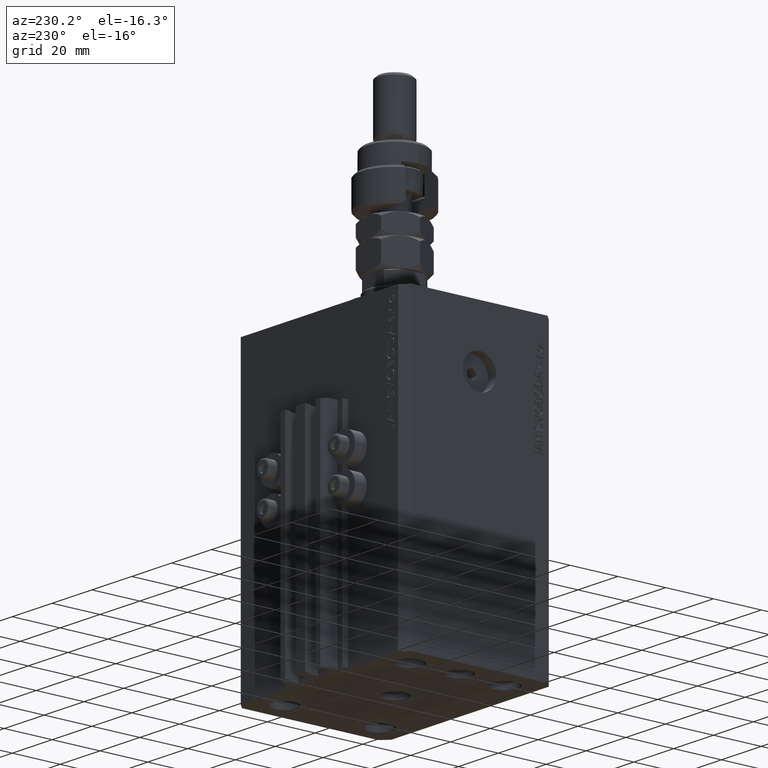
[diagram: clean part render]
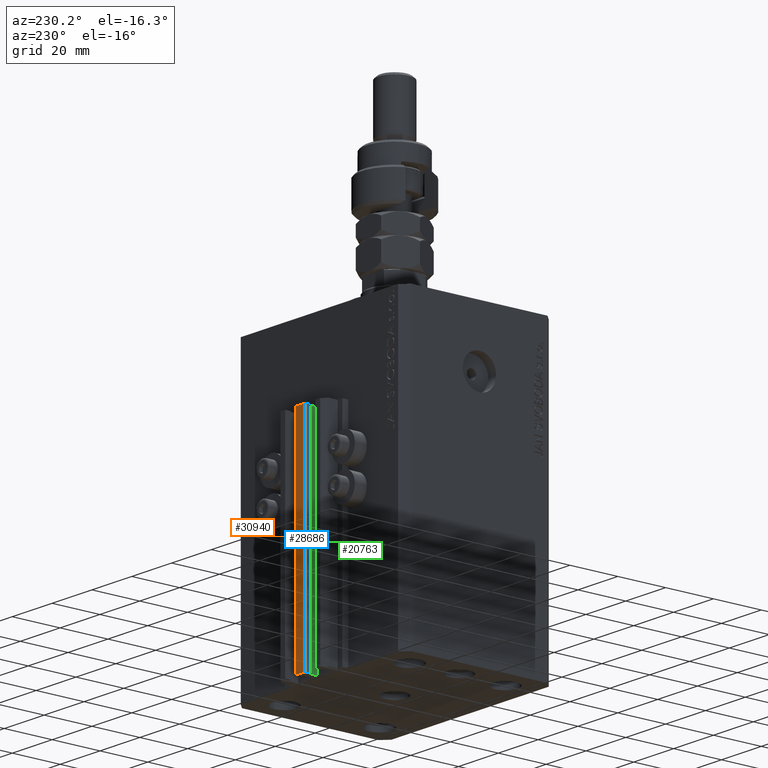
[diagram: same view with three faces highlighted in distinct colors, each labeled with its STEP entity id]
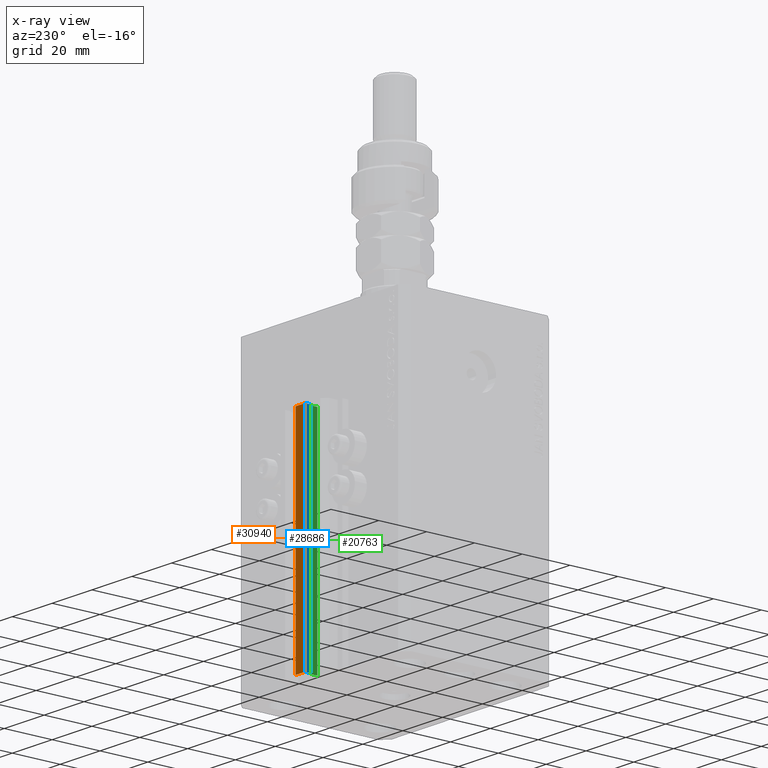
[diagram: x-ray of the same camera — body ghosted, the three highlighted faces saturated]
A machine part, auxiliary view with three faces highlighted in distinct colors.
The next image is the same camera in x-ray (body ghosted, the three faces saturated) — at least one of them is partly hidden behind the body in this view.
Their STEP definitions:

[orange] entity #30940 — the highlighted planar face has unit normal (0, -1, 0).
#2632 = ORIENTED_EDGE ( 'NONE', *, *, #13558, .T. ) ;
#5527 = DIRECTION ( 'NONE',  ( 0.000000000000000000, -1.000000000000000000, 0.000000000000000000 ) ) ;
#7011 = VERTEX_POINT ( 'NONE', #17304 ) ;
#8791 = CARTESIAN_POINT ( 'NONE',  ( -2.350000000000003642, 39.50000000000000711, -123.0000000000000000 ) ) ;
#9266 = EDGE_LOOP ( 'NONE', ( #11785, #40470, #32082, #2632 ) ) ;
#9633 = CARTESIAN_POINT ( 'NONE',  ( 2.349999999999999645, 39.50000000000000711, -123.0000000000000000 ) ) ;
#10582 = CARTESIAN_POINT ( 'NONE',  ( -2.350000000000003642, 39.50000000000000711, -123.0000000000000000 ) ) ;
#11193 = LINE ( 'NONE', #19076, #11349 ) ;
#11349 = VECTOR ( 'NONE', #39099, 1000.000000000000000 ) ;
#11785 = ORIENTED_EDGE ( 'NONE', *, *, #19922, .T. ) ;
#12519 = AXIS2_PLACEMENT_3D ( 'NONE', #10582, #5527, #34425 ) ;
#13093 = VERTEX_POINT ( 'NONE', #33103 ) ;
#13558 = EDGE_CURVE ( 'NONE', #45313, #7011, #11193, .T. ) ;
#17190 = FACE_OUTER_BOUND ( 'NONE', #9266, .T. ) ;
#17304 = CARTESIAN_POINT ( 'NONE',  ( -2.350000000000003642, 39.50000000000000711, -33.00000000000000000 ) ) ;
#19076 = CARTESIAN_POINT ( 'NONE',  ( -2.350000000000003642, 39.50000000000000711, -123.0000000000000000 ) ) ;
#19922 = EDGE_CURVE ( 'NONE', #7011, #35705, #24544, .T. ) ;
#20053 = CARTESIAN_POINT ( 'NONE',  ( 2.349999999999999645, 39.50000000000000711, -33.00000000000000000 ) ) ;
#20980 = DIRECTION ( 'NONE',  ( 1.000000000000000000, 0.000000000000000000, 0.000000000000000000 ) ) ;
#21068 = DIRECTION ( 'NONE',  ( 0.000000000000000000, 0.000000000000000000, 1.000000000000000000 ) ) ;
#22077 = LINE ( 'NONE', #9633, #38693 ) ;
#24544 = LINE ( 'NONE', #43568, #33301 ) ;
#24553 = EDGE_CURVE ( 'NONE', #45313, #13093, #47372, .T. ) ;
#26209 = VECTOR ( 'NONE', #35929, 1000.000000000000000 ) ;
#30940 = ADVANCED_FACE ( 'NONE', ( #17190 ), #45348, .F. ) ;
#32082 = ORIENTED_EDGE ( 'NONE', *, *, #24553, .F. ) ;
#33103 = CARTESIAN_POINT ( 'NONE',  ( 2.349999999999999645, 39.50000000000000711, -123.0000000000000000 ) ) ;
#33301 = VECTOR ( 'NONE', #20980, 1000.000000000000000 ) ;
#34425 = DIRECTION ( 'NONE',  ( 0.000000000000000000, -0.000000000000000000, -1.000000000000000000 ) ) ;
#35705 = VERTEX_POINT ( 'NONE', #20053 ) ;
#35929 = DIRECTION ( 'NONE',  ( 1.000000000000000000, 0.000000000000000000, 0.000000000000000000 ) ) ;
#37951 = EDGE_CURVE ( 'NONE', #13093, #35705, #22077, .T. ) ;
#38693 = VECTOR ( 'NONE', #21068, 1000.000000000000000 ) ;
#39099 = DIRECTION ( 'NONE',  ( 0.000000000000000000, 0.000000000000000000, 1.000000000000000000 ) ) ;
#40470 = ORIENTED_EDGE ( 'NONE', *, *, #37951, .F. ) ;
#41001 = CARTESIAN_POINT ( 'NONE',  ( -2.350000000000003642, 39.50000000000000711, -123.0000000000000000 ) ) ;
#43568 = CARTESIAN_POINT ( 'NONE',  ( -2.350000000000003642, 39.50000000000000711, -33.00000000000000000 ) ) ;
#45313 = VERTEX_POINT ( 'NONE', #41001 ) ;
#45348 = PLANE ( 'NONE',  #12519 ) ;
#47372 = LINE ( 'NONE', #8791, #26209 ) ;

[blue] entity #28686 — the highlighted planar face has unit normal (-1, -0, 0).
#92 = VERTEX_POINT ( 'NONE', #32090 ) ;
#208 = DIRECTION ( 'NONE',  ( 1.807003620809174632E-16, -1.000000000000000000, 0.000000000000000000 ) ) ;
#4009 = LINE ( 'NONE', #26843, #38825 ) ;
#4976 = EDGE_LOOP ( 'NONE', ( #48661, #11967, #22589, #31079 ) ) ;
#7011 = VERTEX_POINT ( 'NONE', #17304 ) ;
#9162 = DIRECTION ( 'NONE',  ( -1.000000000000000000, -1.807003620809174878E-16, 0.000000000000000000 ) ) ;
#9271 = VECTOR ( 'NONE', #23325, 1000.000000000000000 ) ;
#11193 = LINE ( 'NONE', #19076, #11349 ) ;
#11349 = VECTOR ( 'NONE', #39099, 1000.000000000000000 ) ;
#11967 = ORIENTED_EDGE ( 'NONE', *, *, #13558, .F. ) ;
#11982 = LINE ( 'NONE', #39141, #17785 ) ;
#12918 = EDGE_CURVE ( 'NONE', #14061, #92, #11982, .T. ) ;
#13558 = EDGE_CURVE ( 'NONE', #45313, #7011, #11193, .T. ) ;
#14061 = VERTEX_POINT ( 'NONE', #22199 ) ;
#16276 = PLANE ( 'NONE',  #19068 ) ;
#17304 = CARTESIAN_POINT ( 'NONE',  ( -2.350000000000003642, 39.50000000000000711, -33.00000000000000000 ) ) ;
#17785 = VECTOR ( 'NONE', #46522, 1000.000000000000000 ) ;
#19068 = AXIS2_PLACEMENT_3D ( 'NONE', #32009, #9162, #47491 ) ;
#19076 = CARTESIAN_POINT ( 'NONE',  ( -2.350000000000003642, 39.50000000000000711, -123.0000000000000000 ) ) ;
#22199 = CARTESIAN_POINT ( 'NONE',  ( -2.350000000000003197, 37.10000000000000853, -123.0000000000000000 ) ) ;
#22589 = ORIENTED_EDGE ( 'NONE', *, *, #45242, .T. ) ;
#23325 = DIRECTION ( 'NONE',  ( 1.807003620809174632E-16, -1.000000000000000000, 0.000000000000000000 ) ) ;
#26843 = CARTESIAN_POINT ( 'NONE',  ( -2.350000000000003642, 39.50000000000000711, -123.0000000000000000 ) ) ;
#26873 = CARTESIAN_POINT ( 'NONE',  ( -2.350000000000003642, 39.50000000000000711, -33.00000000000000000 ) ) ;
#28686 = ADVANCED_FACE ( 'NONE', ( #40356 ), #16276, .T. ) ;
#30712 = EDGE_CURVE ( 'NONE', #7011, #92, #42845, .T. ) ;
#31079 = ORIENTED_EDGE ( 'NONE', *, *, #12918, .T. ) ;
#32009 = CARTESIAN_POINT ( 'NONE',  ( -2.350000000000003642, 39.50000000000000711, -123.0000000000000000 ) ) ;
#32090 = CARTESIAN_POINT ( 'NONE',  ( -2.350000000000003197, 37.10000000000000853, -33.00000000000000000 ) ) ;
#38825 = VECTOR ( 'NONE', #208, 1000.000000000000000 ) ;
#39099 = DIRECTION ( 'NONE',  ( 0.000000000000000000, 0.000000000000000000, 1.000000000000000000 ) ) ;
#39141 = CARTESIAN_POINT ( 'NONE',  ( -2.350000000000003197, 37.10000000000000853, -123.0000000000000000 ) ) ;
#40356 = FACE_OUTER_BOUND ( 'NONE', #4976, .T. ) ;
#41001 = CARTESIAN_POINT ( 'NONE',  ( -2.350000000000003642, 39.50000000000000711, -123.0000000000000000 ) ) ;
#42845 = LINE ( 'NONE', #26873, #9271 ) ;
#45242 = EDGE_CURVE ( 'NONE', #45313, #14061, #4009, .T. ) ;
#45313 = VERTEX_POINT ( 'NONE', #41001 ) ;
#46522 = DIRECTION ( 'NONE',  ( 0.000000000000000000, 0.000000000000000000, 1.000000000000000000 ) ) ;
#47491 = DIRECTION ( 'NONE',  ( 1.807003620809174878E-16, -1.000000000000000000, 0.000000000000000000 ) ) ;
#48661 = ORIENTED_EDGE ( 'NONE', *, *, #30712, .F. ) ;

[green] entity #20763 — the highlighted planar face has unit normal (-1, 0, 0).
#3175 = CARTESIAN_POINT ( 'NONE',  ( -1.600000000000001421, 36.90000000000000568, -123.0000000000000000 ) ) ;
#3943 = VERTEX_POINT ( 'NONE', #35068 ) ;
#8771 = ORIENTED_EDGE ( 'NONE', *, *, #15827, .T. ) ;
#9293 = VERTEX_POINT ( 'NONE', #42043 ) ;
#10745 = VERTEX_POINT ( 'NONE', #32071 ) ;
#12314 = AXIS2_PLACEMENT_3D ( 'NONE', #34473, #22812, #27110 ) ;
#12489 = VECTOR ( 'NONE', #26427, 1000.000000000000000 ) ;
#13395 = CARTESIAN_POINT ( 'NONE',  ( -1.600000000000000755, 33.70000000000000284, -123.0000000000000000 ) ) ;
#14561 = LINE ( 'NONE', #3175, #20247 ) ;
#14737 = LINE ( 'NONE', #29720, #12489 ) ;
#14904 = LINE ( 'NONE', #34707, #43008 ) ;
#15827 = EDGE_CURVE ( 'NONE', #29003, #9293, #37738, .T. ) ;
#18960 = EDGE_CURVE ( 'NONE', #10745, #9293, #14904, .T. ) ;
#20247 = VECTOR ( 'NONE', #22699, 1000.000000000000000 ) ;
#20763 = ADVANCED_FACE ( 'NONE', ( #43083 ), #39274, .T. ) ;
#22699 = DIRECTION ( 'NONE',  ( 0.000000000000000000, 0.000000000000000000, 1.000000000000000000 ) ) ;
#22812 = DIRECTION ( 'NONE',  ( -1.000000000000000000, 6.776263578034386689E-17, 0.000000000000000000 ) ) ;
#23468 = VECTOR ( 'NONE', #33699, 1000.000000000000000 ) ;
#26427 = DIRECTION ( 'NONE',  ( -6.776263578034385456E-17, -1.000000000000000000, 0.000000000000000000 ) ) ;
#26875 = EDGE_CURVE ( 'NONE', #3943, #29003, #14737, .T. ) ;
#27110 = DIRECTION ( 'NONE',  ( -6.776263578034386689E-17, -1.000000000000000000, 0.000000000000000000 ) ) ;
#27340 = DIRECTION ( 'NONE',  ( -6.776263578034385456E-17, -1.000000000000000000, 0.000000000000000000 ) ) ;
#29003 = VERTEX_POINT ( 'NONE', #13395 ) ;
#29720 = CARTESIAN_POINT ( 'NONE',  ( -1.600000000000000533, 36.90000000000000568, -123.0000000000000000 ) ) ;
#30655 = ORIENTED_EDGE ( 'NONE', *, *, #18960, .F. ) ;
#32071 = CARTESIAN_POINT ( 'NONE',  ( -1.600000000000001421, 36.90000000000000568, -33.00000000000000000 ) ) ;
#32561 = ORIENTED_EDGE ( 'NONE', *, *, #26875, .T. ) ;
#33699 = DIRECTION ( 'NONE',  ( 0.000000000000000000, 0.000000000000000000, 1.000000000000000000 ) ) ;
#34473 = CARTESIAN_POINT ( 'NONE',  ( -1.600000000000000533, 36.90000000000000568, -123.0000000000000000 ) ) ;
#34707 = CARTESIAN_POINT ( 'NONE',  ( -1.600000000000000533, 36.90000000000000568, -33.00000000000000000 ) ) ;
#35068 = CARTESIAN_POINT ( 'NONE',  ( -1.600000000000001421, 36.90000000000000568, -123.0000000000000000 ) ) ;
#37738 = LINE ( 'NONE', #41556, #23468 ) ;
#39274 = PLANE ( 'NONE',  #12314 ) ;
#41556 = CARTESIAN_POINT ( 'NONE',  ( -1.600000000000000755, 33.70000000000000284, -123.0000000000000000 ) ) ;
#42043 = CARTESIAN_POINT ( 'NONE',  ( -1.600000000000000755, 33.70000000000000284, -33.00000000000000000 ) ) ;
#43008 = VECTOR ( 'NONE', #27340, 1000.000000000000000 ) ;
#43083 = FACE_OUTER_BOUND ( 'NONE', #48547, .T. ) ;
#43572 = ORIENTED_EDGE ( 'NONE', *, *, #48023, .F. ) ;
#48023 = EDGE_CURVE ( 'NONE', #3943, #10745, #14561, .T. ) ;
#48547 = EDGE_LOOP ( 'NONE', ( #30655, #43572, #32561, #8771 ) ) ;